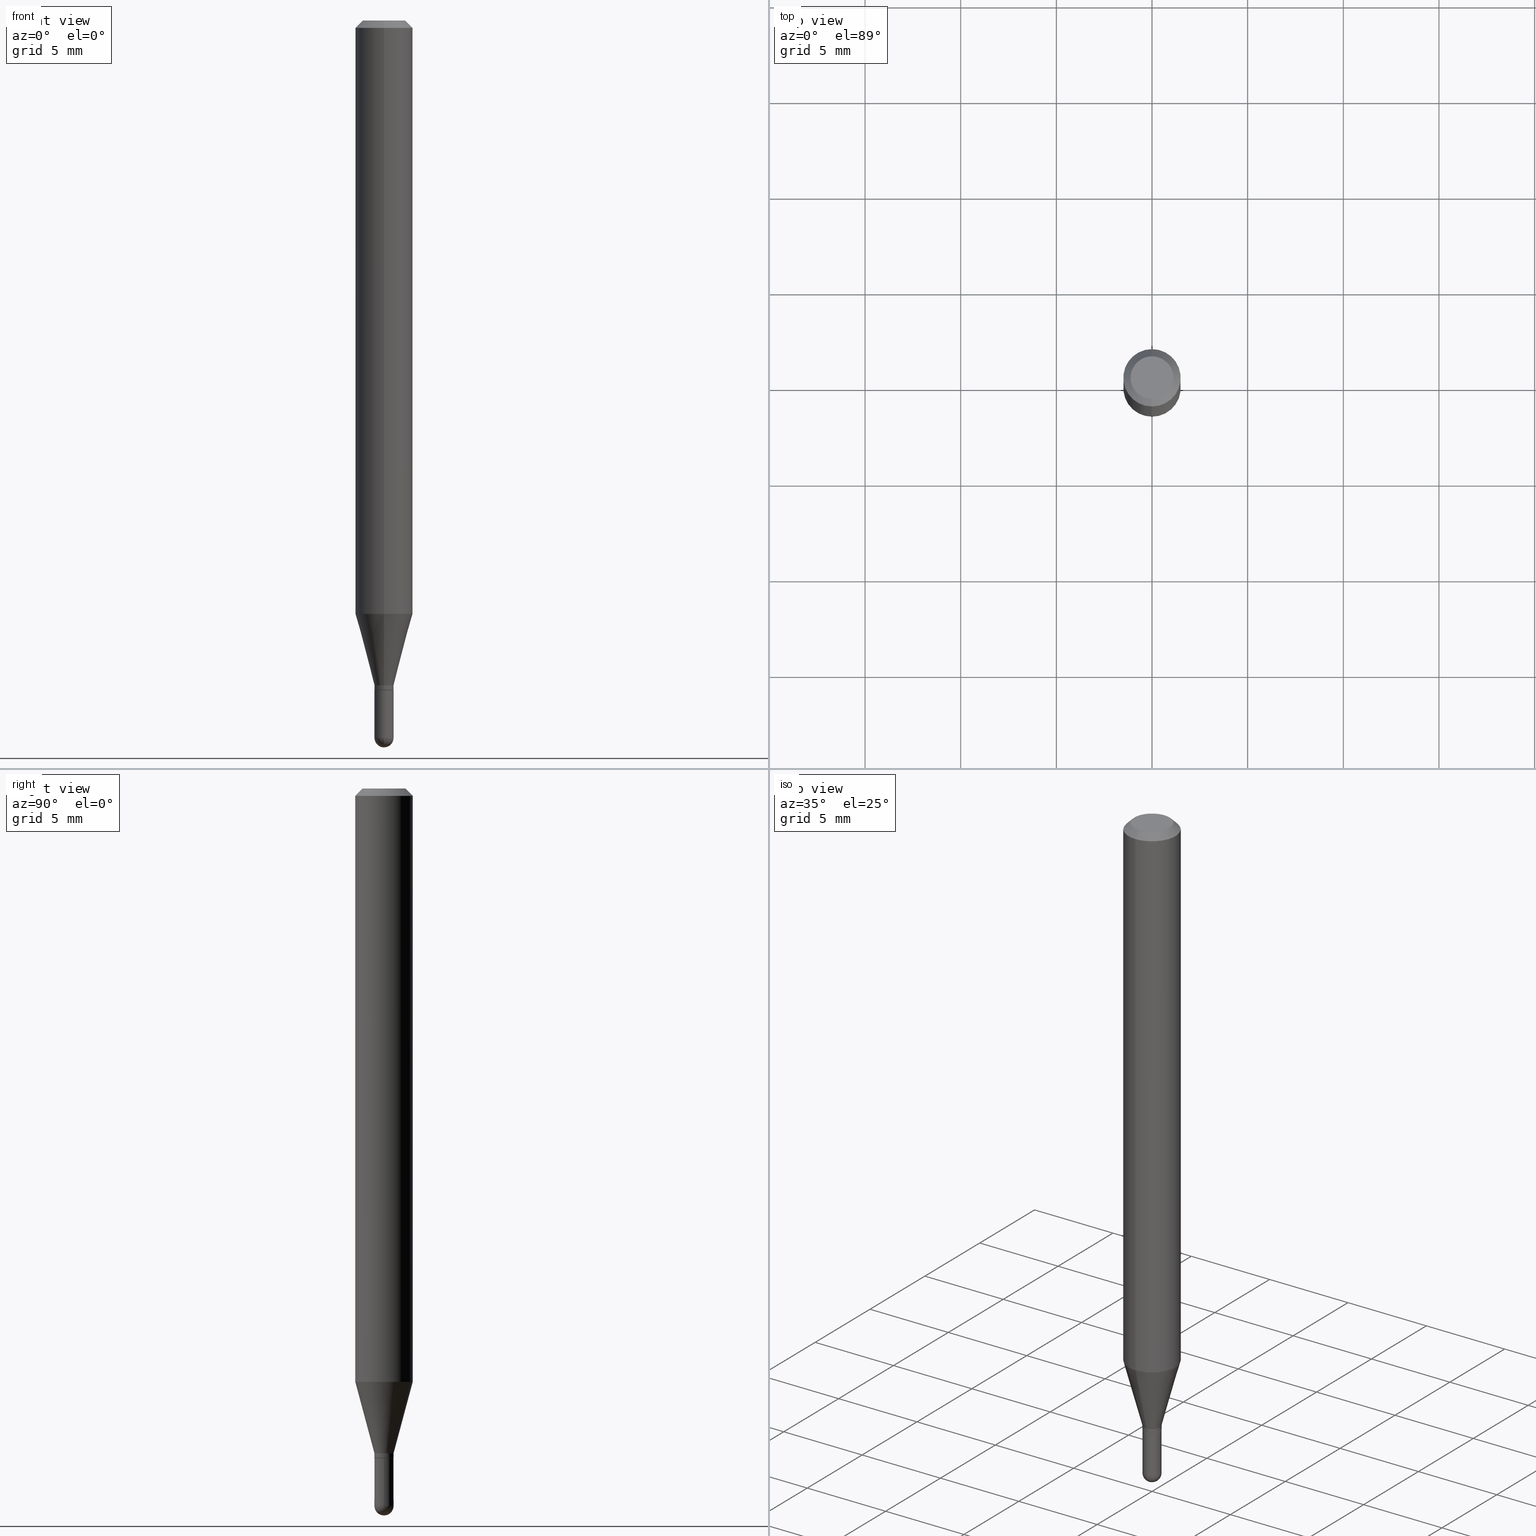
[diagram: canonical four-view strip — front | top / right | iso, engineering-drawing reading convention]
A machine part, canonical four-view strip (front | top / right | iso — engineering-drawing reading convention). The complete STEP part file that produces these views, byte-faithful:
ISO-10303-21;
HEADER;
FILE_DESCRIPTION (( 'STEP AP203' ),
    '1' );
FILE_NAME ('02829.STEP',
    '2024-03-07T21:39:05',
    ( '' ),
    ( '' ),
    'SwSTEP 2.0',
    'SolidWorks 2023',
    '' );
FILE_SCHEMA (( 'CONFIG_CONTROL_DESIGN' ));
ENDSEC;

DATA;
#1 = ORIENTED_EDGE ( 'NONE', *, *, #7, .F. ) ;
#2 = EDGE_CURVE ( 'NONE', #329, #493, #495, .T. ) ;
#3 = CARTESIAN_POINT ( 'NONE',  ( 3.522955324091332900E-29, -5.280177895028742273E-15, -1.476399999999999935 ) ) ;
#4 = DIRECTION ( 'NONE',  ( -6.982962677686265922E-15, -1.000000000000000000, 0.000000000000000000 ) ) ;
#5 = AXIS2_PLACEMENT_3D ( 'NONE', #257, #103, #413 ) ;
#6 = DIRECTION ( 'NONE',  ( -2.446456800980005682E-29, 3.490066474063722068E-15, 1.000000000000000000 ) ) ;
#7 = EDGE_CURVE ( 'NONE', #213, #21, #12, .T. ) ;
#8 = APPROVAL_DATE_TIME ( #328, #340 ) ;
#9 = DIRECTION ( 'NONE',  ( -2.446456800980005402E-29, 3.490066474063722068E-15, 1.000000000000000000 ) ) ;
#10 = EDGE_CURVE ( 'NONE', #94, #329, #134, .T. ) ;
#11 = DIRECTION ( 'NONE',  ( -2.445468806185136877E-29, 3.491481338843145188E-15, 1.000000000000000000 ) ) ;
#12 = CIRCLE ( 'NONE', #220, 0.01969999999999987039 ) ;
#13 =( GEOMETRIC_REPRESENTATION_CONTEXT ( 3 ) GLOBAL_UNCERTAINTY_ASSIGNED_CONTEXT ( ( #192 ) ) GLOBAL_UNIT_ASSIGNED_CONTEXT ( ( #311, #268, #116 ) ) REPRESENTATION_CONTEXT ( 'NONE', 'WORKASPACE' ) );
#14 = ORIENTED_EDGE ( 'NONE', *, *, #67, .T. ) ;
#15 = EDGE_LOOP ( 'NONE', ( #253, #14, #455, #395 ) ) ;
#16 = FACE_OUTER_BOUND ( 'NONE', #187, .T. ) ;
#17 = ORIENTED_EDGE ( 'NONE', *, *, #419, .T. ) ;
#18 = ORIENTED_EDGE ( 'NONE', *, *, #244, .F. ) ;
#19 = ORIENTED_EDGE ( 'NONE', *, *, #79, .F. ) ;
#20 = CARTESIAN_POINT ( 'NONE',  ( 3.371217471750447444E-29, -4.809311601259809045E-15, -1.377999999999999892 ) ) ;
#21 = VERTEX_POINT ( 'NONE', #397 ) ;
#22 = DIRECTION ( 'NONE',  ( -2.446456800980005402E-29, 3.490066474063722068E-15, 1.000000000000000000 ) ) ;
#23 = EDGE_LOOP ( 'NONE', ( #408, #451, #418, #102 ) ) ;
#24 = AXIS2_PLACEMENT_3D ( 'NONE', #437, #446, #49 ) ;
#25 = LOCAL_TIME ( 16, 39, 5.000000000000000000, #157 ) ;
#26 = DIRECTION ( 'NONE',  ( -2.446456800980005682E-29, 3.490066474063722068E-15, 1.000000000000000000 ) ) ;
#27 = ORIENTED_EDGE ( 'NONE', *, *, #501, .T. ) ;
#28 = CARTESIAN_POINT ( 'NONE',  ( 3.669685201470092461E-31, -5.235099711095702540E-17, -0.01500000000000034292 ) ) ;
#29 = DIRECTION ( 'NONE',  ( 6.982962677686265922E-15, 1.000000000000000000, 0.000000000000000000 ) ) ;
#30 = DIRECTION ( 'NONE',  ( -6.982962677686265922E-15, -1.000000000000000000, 0.000000000000000000 ) ) ;
#31 = AXIS2_PLACEMENT_3D ( 'NONE', #435, #309, #463 ) ;
#32 = LENGTH_MEASURE_WITH_UNIT ( LENGTH_MEASURE( 0.02539999999999999897 ), #391 );
#33 = ADVANCED_FACE ( 'NONE', ( #226 ), #126, .T. ) ;
#34 = DIRECTION ( 'NONE',  ( 1.000000000000000000, -6.982962677686275388E-15, 0.000000000000000000 ) ) ;
#35 = ORIENTED_EDGE ( 'NONE', *, *, #503, .T. ) ;
#36 = FACE_OUTER_BOUND ( 'NONE', #196, .T. ) ;
#37 = CYLINDRICAL_SURFACE ( 'NONE', #231, 0.01969999999999965529 ) ;
#38 = DIRECTION ( 'NONE',  ( -6.982962677686266711E-15, -1.000000000000000000, 3.490066474063722857E-15 ) ) ;
#39 = CIRCLE ( 'NONE', #140, 0.01969999999999987039 ) ;
#40 = ADVANCED_FACE ( 'NONE', ( #349 ), #180, .T. ) ;
#41 = AXIS2_PLACEMENT_3D ( 'NONE', #121, #193, #351 ) ;
#42 = DIRECTION ( 'NONE',  ( 1.000000000000000000, -6.982962677686275388E-15, 0.000000000000000000 ) ) ;
#43 = PERSON_AND_ORGANIZATION_ROLE ( 'design_supplier' ) ;
#44 = DIRECTION ( 'NONE',  ( -2.445468806185136597E-29, 3.491481338843145583E-15, 1.000000000000000000 ) ) ;
#45 = PERSON_AND_ORGANIZATION ( #412, #298 ) ;
#46 = CARTESIAN_POINT ( 'NONE',  ( 0.000000000000000000, 0.000000000000000000, 0.000000000000000000 ) ) ;
#47 = CIRCLE ( 'NONE', #341, 0.01969999999999987039 ) ;
#48 = CARTESIAN_POINT ( 'NONE',  ( -1.399769189447036867E-16, -0.01970000000000517171, -1.476399999999999491 ) ) ;
#49 = DIRECTION ( 'NONE',  ( 1.000000000000000000, -6.982962677686275388E-15, 0.000000000000000000 ) ) ;
#50 = DIRECTION ( 'NONE',  ( -6.982962677686265922E-15, -1.000000000000000000, 3.490066474063722068E-15 ) ) ;
#51 = EDGE_LOOP ( 'NONE', ( #378, #345, #227, #222 ) ) ;
#52 = ADVANCED_FACE ( 'NONE', ( #506 ), #37, .T. ) ;
#53 = EDGE_LOOP ( 'NONE', ( #339, #380 ) ) ;
#54 = AXIS2_PLACEMENT_3D ( 'NONE', #273, #269, #113 ) ;
#55 = CIRCLE ( 'NONE', #82, 0.01919999999999986648 ) ;
#56 = CARTESIAN_POINT ( 'NONE',  ( 3.669685201470092461E-31, -5.235099711095702540E-17, -0.01500000000000034292 ) ) ;
#57 = ORIENTED_EDGE ( 'NONE', *, *, #179, .T. ) ;
#58 = LINE ( 'NONE', #136, #287 ) ;
#59 = EDGE_LOOP ( 'NONE', ( #18, #104, #409, #299 ) ) ;
#60 = CYLINDRICAL_SURFACE ( 'NONE', #182, 0.05904999999999999832 ) ;
#61 = ORIENTED_EDGE ( 'NONE', *, *, #447, .T. ) ;
#62 = VECTOR ( 'NONE', #276, 39.37007874015748143 ) ;
#63 = DIRECTION ( 'NONE',  ( 6.982962677686265922E-15, 1.000000000000000000, 0.000000000000000000 ) ) ;
#64 = DIRECTION ( 'NONE',  ( -4.851104656540964275E-15, -0.7071067811865500152, -0.7071067811865450192 ) ) ;
#65 = CYLINDRICAL_SURFACE ( 'NONE', #422, 0.01969999999999965529 ) ;
#66 = DIRECTION ( 'NONE',  ( -6.982962677686265922E-15, -1.000000000000000000, 3.490066474063722068E-15 ) ) ;
#67 = EDGE_CURVE ( 'NONE', #433, #138, #108, .T. ) ;
#68 = DIRECTION ( 'NONE',  ( -6.982962677686266711E-15, -1.000000000000000000, 3.490066474063722857E-15 ) ) ;
#69 = EDGE_CURVE ( 'NONE', #433, #250, #230, .T. ) ;
#70 = CARTESIAN_POINT ( 'NONE',  ( 4.195754854663691246E-16, 0.05904999999999994975, -0.01500000000000055109 ) ) ;
#71 = VECTOR ( 'NONE', #155, 39.37007874015748143 ) ;
#72 = PRODUCT_DEFINITION_FORMATION_WITH_SPECIFIED_SOURCE ( 'ANY', '', #356, .NOT_KNOWN. ) ;
#73 = CARTESIAN_POINT ( 'NONE',  ( -0.01969999999999987039, -4.843065247852196904E-15, -1.476399999999999491 ) ) ;
#74 = CYLINDRICAL_SURFACE ( 'NONE', #98, 0.05904999999999999832 ) ;
#75 = COORDINATED_UNIVERSAL_TIME_OFFSET ( 5, 0, .BEHIND. ) ;
#76 = CARTESIAN_POINT ( 'NONE',  ( 3.346997549420744839E-29, -4.774759943166577128E-15, -1.368099999999999872 ) ) ;
#77 = COORDINATED_UNIVERSAL_TIME_OFFSET ( 5, 0, .BEHIND. ) ;
#78 = LINE ( 'NONE', #320, #326 ) ;
#79 = EDGE_CURVE ( 'NONE', #347, #407, #352, .T. ) ;
#80 = VECTOR ( 'NONE', #129, 39.37007874015748854 ) ;
#81 = MECHANICAL_CONTEXT ( 'NONE', #414, 'mechanical' ) ;
#82 = AXIS2_PLACEMENT_3D ( 'NONE', #430, #314, #469 ) ;
#83 = CYLINDRICAL_SURFACE ( 'NONE', #316, 0.01969999999999987039 ) ;
#84 = APPROVAL ( #245, 'UNSPECIFIED' ) ;
#85 = ADVANCED_FACE ( 'NONE', ( #149 ), #198, .F. ) ;
#86 = DIRECTION ( 'NONE',  ( -6.982962677686265133E-15, -1.000000000000000000, 0.000000000000000000 ) ) ;
#87 = PERSON_AND_ORGANIZATION_ROLE ( 'classification_officer' ) ;
#88 = LINE ( 'NONE', #290, #265 ) ;
#89 = CLOSED_SHELL ( 'NONE', ( #496, #133, #40, #342, #33, #272, #158, #323, #363, #117, #337, #52 ) ) ;
#90 = DIRECTION ( 'NONE',  ( -2.446456800980005402E-29, 3.490066474063722068E-15, 1.000000000000000000 ) ) ;
#91 = AXIS2_PLACEMENT_3D ( 'NONE', #439, #243, #131 ) ;
#92 = ORIENTED_EDGE ( 'NONE', *, *, #7, .T. ) ;
#93 = EDGE_CURVE ( 'NONE', #490, #407, #404, .T. ) ;
#94 = VERTEX_POINT ( 'NONE', #307 ) ;
#95 = DIRECTION ( 'NONE',  ( 4.937700262164548042E-15, 0.7071067811865451302, -0.7071067811865499042 ) ) ;
#96 = ORIENTED_EDGE ( 'NONE', *, *, #79, .T. ) ;
#97 = ORIENTED_EDGE ( 'NONE', *, *, #488, .F. ) ;
#98 = AXIS2_PLACEMENT_3D ( 'NONE', #315, #460, #167 ) ;
#99 = LOCAL_TIME ( 16, 39, 5.000000000000000000, #478 ) ;
#100 = ORIENTED_EDGE ( 'NONE', *, *, #387, .T. ) ;
#101 = FACE_OUTER_BOUND ( 'NONE', #51, .T. ) ;
#102 = ORIENTED_EDGE ( 'NONE', *, *, #275, .F. ) ;
#103 = DIRECTION ( 'NONE',  ( -2.445468806185136597E-29, 3.491481338843145583E-15, 1.000000000000000000 ) ) ;
#104 = ORIENTED_EDGE ( 'NONE', *, *, #2, .T. ) ;
#105 = EDGE_CURVE ( 'NONE', #458, #213, #370, .T. ) ;
#106 = CARTESIAN_POINT ( 'NONE',  ( -4.123439461173736383E-16, -0.05905000000000005383, -0.01500000000000013649 ) ) ;
#107 = CARTESIAN_POINT ( 'NONE',  ( 8.396513641257656738E-45, -1.197829887968316227E-30, -3.432111957952484022E-16 ) ) ;
#108 = CIRCLE ( 'NONE', #296, 0.01969999999999951998 ) ;
#109 = VECTOR ( 'NONE', #346, 39.37007874015748143 ) ;
#110 = MANIFOLD_SOLID_BREP ( 'Body-Move/Copy2[2]', #89 ) ;
#111 = DIRECTION ( 'NONE',  ( 6.982962677686266711E-15, 1.000000000000000000, 0.000000000000000000 ) ) ;
#112 = EDGE_CURVE ( 'NONE', #184, #336, #468, .T. ) ;
#113 = DIRECTION ( 'NONE',  ( -6.982962677686265922E-15, -1.000000000000000000, 4.626330217890369336E-15 ) ) ;
#114 = FACE_OUTER_BOUND ( 'NONE', #171, .T. ) ;
#115 = CARTESIAN_POINT ( 'NONE',  ( 1.399769189447697785E-16, 0.01969999999999474255, -1.368099999999999872 ) ) ;
#116 =( NAMED_UNIT ( * ) SI_UNIT ( $, .STERADIAN. ) SOLID_ANGLE_UNIT ( ) );
#117 = ADVANCED_FACE ( 'NONE', ( #432 ), #189, .F. ) ;
#118 = FACE_OUTER_BOUND ( 'NONE', #353, .T. ) ;
#119 = CLOSED_SHELL ( 'NONE', ( #254, #424, #85, #453, #318 ) ) ;
#120 = CC_DESIGN_APPROVAL ( #84, ( #239 ) ) ;
#121 = CARTESIAN_POINT ( 'NONE',  ( 2.987720201931407293E-29, -4.262222045558578692E-15, -1.221243800722163320 ) ) ;
#122 = DIRECTION ( 'NONE',  ( -6.982962677686265133E-15, -1.000000000000000000, 0.000000000000000000 ) ) ;
#123 = PERSON_AND_ORGANIZATION_ROLE ( 'creator' ) ;
#124 = APPROVAL_DATE_TIME ( #127, #84 ) ;
#125 = CARTESIAN_POINT ( 'NONE',  ( -4.123439461173442039E-16, -0.05905000000000427962, -1.221243800722163320 ) ) ;
#126 = CONICAL_SURFACE ( 'NONE', #332, 0.01969999999999951998, 0.2617993877991505736 ) ;
#127 = DATE_AND_TIME ( #367, #267 ) ;
#128 = APPROVAL_PERSON_ORGANIZATION ( #206, #84, #284 ) ;
#129 = DIRECTION ( 'NONE',  ( -1.807323732225332111E-15, -0.2588190451025184635, 0.9659258262890689783 ) ) ;
#130 = DIRECTION ( 'NONE',  ( -1.000000000000000000, 7.105427357601001070E-15, -4.926315508542082329E-29 ) ) ;
#131 = DIRECTION ( 'NONE',  ( 1.000000000000000000, 0.000000000000000000, 0.000000000000000000 ) ) ;
#132 = ORIENTED_EDGE ( 'NONE', *, *, #205, .T. ) ;
#133 = ADVANCED_FACE ( 'NONE', ( #358 ), #461, .T. ) ;
#134 = CIRCLE ( 'NONE', #164, 0.04404999999999999888 ) ;
#135 = CARTESIAN_POINT ( 'NONE',  ( 3.571973398368021242E-29, -5.347753800306791438E-15, -1.496099999999999985 ) ) ;
#136 = CARTESIAN_POINT ( 'NONE',  ( 1.364242052659719861E-16, 0.01919999999999505783, -1.377999999999999892 ) ) ;
#137 = EDGE_LOOP ( 'NONE', ( #261, #17, #96, #209 ) ) ;
#138 = VERTEX_POINT ( 'NONE', #312 ) ;
#139 = CC_DESIGN_PERSON_AND_ORGANIZATION_ASSIGNMENT ( #436, #123, ( #258 ) ) ;
#140 = AXIS2_PLACEMENT_3D ( 'NONE', #406, #366, #242 ) ;
#141 = ORIENTED_EDGE ( 'NONE', *, *, #488, .T. ) ;
#142 = AXIS2_PLACEMENT_3D ( 'NONE', #237, #90, #248 ) ;
#143 = CIRCLE ( 'NONE', #360, 0.01970000000000002999 ) ;
#144 = EDGE_CURVE ( 'NONE', #260, #250, #369, .T. ) ;
#145 = ORIENTED_EDGE ( 'NONE', *, *, #221, .T. ) ;
#146 = CARTESIAN_POINT ( 'NONE',  ( 1.375643647504522233E-16, 0.01969999999999505827, -1.377999999999999892 ) ) ;
#147 = VERTEX_POINT ( 'NONE', #70 ) ;
#148 = LINE ( 'NONE', #466, #431 ) ;
#149 = FACE_OUTER_BOUND ( 'NONE', #53, .T. ) ;
#150 = AXIS2_PLACEMENT_3D ( 'NONE', #56, #375, #457 ) ;
#151 = AXIS2_PLACEMENT_3D ( 'NONE', #297, #497, #334 ) ;
#152 = CARTESIAN_POINT ( 'NONE',  ( 3.371217471750447444E-29, -4.809311601259809045E-15, -1.377999999999999892 ) ) ;
#153 = DIRECTION ( 'NONE',  ( -2.446456800980005402E-29, 3.490066474063722068E-15, 1.000000000000000000 ) ) ;
#154 = CARTESIAN_POINT ( 'NONE',  ( 3.371217471750447444E-29, -4.809311601259809045E-15, -1.377999999999999892 ) ) ;
#155 = DIRECTION ( 'NONE',  ( -4.937700262164684515E-15, -0.7071067811865646702, 0.7071067811865303643 ) ) ;
#156 = CONICAL_SURFACE ( 'NONE', #306, 0.01969999999999951998, 0.2617993877991505736 ) ;
#157 = COORDINATED_UNIVERSAL_TIME_OFFSET ( 5, 0, .BEHIND. ) ;
#158 = ADVANCED_FACE ( 'NONE', ( #118 ), #74, .T. ) ;
#159 = CARTESIAN_POINT ( 'NONE',  ( 3.522955324091332900E-29, -5.280177895028742273E-15, -1.476399999999999935 ) ) ;
#160 = PERSON_AND_ORGANIZATION ( #412, #298 ) ;
#161 = FACE_OUTER_BOUND ( 'NONE', #421, .T. ) ;
#162 = COORDINATED_UNIVERSAL_TIME_OFFSET ( 5, 0, .BEHIND. ) ;
#163 = DIRECTION ( 'NONE',  ( -6.982962677686265922E-15, -1.000000000000000000, 0.000000000000000000 ) ) ;
#164 = AXIS2_PLACEMENT_3D ( 'NONE', #107, #234, #389 ) ;
#165 = CALENDAR_DATE ( 2024, 7, 3 ) ;
#166 = CARTESIAN_POINT ( 'NONE',  ( 3.369994243349957272E-29, -4.807566568022776907E-15, -1.377499999999999947 ) ) ;
#167 = DIRECTION ( 'NONE',  ( -6.982962677686265922E-15, -1.000000000000000000, 3.490066474063722068E-15 ) ) ;
#168 = EDGE_CURVE ( 'NONE', #407, #490, #190, .T. ) ;
#169 = CARTESIAN_POINT ( 'NONE',  ( 3.075995059520799729E-16, 0.04404999999999999888, -3.253430260801311543E-16 ) ) ;
#170 = ORIENTED_EDGE ( 'NONE', *, *, #219, .T. ) ;
#171 = EDGE_LOOP ( 'NONE', ( #211, #170, #251, #411 ) ) ;
#172 = VECTOR ( 'NONE', #95, 39.37007874015748143 ) ;
#173 = LOCAL_TIME ( 16, 39, 5.000000000000000000, #162 ) ;
#174 = ORIENTED_EDGE ( 'NONE', *, *, #144, .T. ) ;
#175 = CARTESIAN_POINT ( 'NONE',  ( 1.382005621053719423E-16, 0.01919999999999505783, -1.377999999999999892 ) ) ;
#176 = ORIENTED_EDGE ( 'NONE', *, *, #185, .T. ) ;
#177 = FACE_OUTER_BOUND ( 'NONE', #216, .T. ) ;
#178 = EDGE_LOOP ( 'NONE', ( #504, #181, #92, #57, #294 ) ) ;
#179 = EDGE_CURVE ( 'NONE', #21, #336, #88, .T. ) ;
#180 = CONICAL_SURFACE ( 'NONE', #441, 0.05904999999999999832, 0.7853981633974483900 ) ;
#181 = ORIENTED_EDGE ( 'NONE', *, *, #105, .T. ) ;
#182 = AXIS2_PLACEMENT_3D ( 'NONE', #338, #410, #50 ) ;
#183 = EDGE_CURVE ( 'NONE', #147, #493, #480, .T. ) ;
#184 = VERTEX_POINT ( 'NONE', #246 ) ;
#185 = EDGE_CURVE ( 'NONE', #21, #373, #39, .T. ) ;
#186 = CARTESIAN_POINT ( 'NONE',  ( 0.000000000000000000, 0.000000000000000000, 0.000000000000000000 ) ) ;
#187 = EDGE_LOOP ( 'NONE', ( #374, #376 ) ) ;
#188 = DIRECTION ( 'NONE',  ( 1.000000000000000000, -6.982962677686265922E-15, 4.883557194083112340E-29 ) ) ;
#189 = PLANE ( 'NONE',  #507 ) ;
#190 = CIRCLE ( 'NONE', #201, 0.01969999999999979406 ) ;
#191 = VECTOR ( 'NONE', #396, 39.37007874015748143 ) ;
#192 = UNCERTAINTY_MEASURE_WITH_UNIT (LENGTH_MEASURE( 1.000000000000000082E-05 ), #311, 'distance_accuracy_value', 'NONE');
#193 = DIRECTION ( 'NONE',  ( -2.446456800980005402E-29, 3.490066474063722068E-15, 1.000000000000000000 ) ) ;
#194 = CC_DESIGN_DATE_AND_TIME_ASSIGNMENT ( #365, #330, ( #258 ) ) ;
#195 = CARTESIAN_POINT ( 'NONE',  ( 3.369994243349957272E-29, -4.807566568022776907E-15, -1.377499999999999947 ) ) ;
#196 = EDGE_LOOP ( 'NONE', ( #259, #27, #263, #1 ) ) ;
#197 = CARTESIAN_POINT ( 'NONE',  ( 1.399769189447714795E-16, 0.01969999999999492296, -1.377499999999999947 ) ) ;
#198 = PLANE ( 'NONE',  #499 ) ;
#199 = PERSON_AND_ORGANIZATION ( #412, #298 ) ;
#200 = DIRECTION ( 'NONE',  ( -2.445468806185136597E-29, 3.491481338843145583E-15, 1.000000000000000000 ) ) ;
#201 = AXIS2_PLACEMENT_3D ( 'NONE', #166, #285, #86 ) ;
#202 = SHAPE_DEFINITION_REPRESENTATION ( #384, #390 ) ;
#203 = DIRECTION ( 'NONE',  ( -7.105427357601000281E-15, -1.000000000000000000, 0.000000000000000000 ) ) ;
#204 = DATE_AND_TIME ( #482, #25 ) ;
#205 = EDGE_CURVE ( 'NONE', #373, #458, #214, .T. ) ;
#206 = PERSON_AND_ORGANIZATION ( #412, #298 ) ;
#207 = CARTESIAN_POINT ( 'NONE',  ( 3.346997549420744839E-29, -4.774759943166577128E-15, -1.368099999999999872 ) ) ;
#208 = CIRCLE ( 'NONE', #308, 0.05904999999999999832 ) ;
#209 = ORIENTED_EDGE ( 'NONE', *, *, #93, .F. ) ;
#210 = CC_DESIGN_PERSON_AND_ORGANIZATION_ASSIGNMENT ( #486, #87, ( #239 ) ) ;
#211 = ORIENTED_EDGE ( 'NONE', *, *, #168, .T. ) ;
#212 = FACE_OUTER_BOUND ( 'NONE', #178, .T. ) ;
#213 = VERTEX_POINT ( 'NONE', #48 ) ;
#214 = CIRCLE ( 'NONE', #24, 0.01969999999999987039 ) ;
#215 = CIRCLE ( 'NONE', #41, 0.05904999999999999832 ) ;
#216 = EDGE_LOOP ( 'NONE', ( #174, #459, #279, #97 ) ) ;
#217 = ORIENTED_EDGE ( 'NONE', *, *, #503, .F. ) ;
#218 = EDGE_LOOP ( 'NONE', ( #473, #145, #302, #313 ) ) ;
#219 = EDGE_CURVE ( 'NONE', #490, #433, #402, .T. ) ;
#220 = AXIS2_PLACEMENT_3D ( 'NONE', #398, #229, #34 ) ;
#221 = EDGE_CURVE ( 'NONE', #383, #213, #392, .T. ) ;
#222 = ORIENTED_EDGE ( 'NONE', *, *, #183, .T. ) ;
#223 = LOCAL_TIME ( 16, 39, 5.000000000000000000, #77 ) ;
#224 = EDGE_CURVE ( 'NONE', #250, #147, #78, .T. ) ;
#225 = APPLICATION_PROTOCOL_DEFINITION ( 'international standard', 'config_control_design', 1994, #414 ) ;
#226 = FACE_OUTER_BOUND ( 'NONE', #23, .T. ) ;
#227 = ORIENTED_EDGE ( 'NONE', *, *, #283, .T. ) ;
#228 = DIRECTION ( 'NONE',  ( -2.446456800980005402E-29, 3.490066474063722068E-15, 1.000000000000000000 ) ) ;
#229 = DIRECTION ( 'NONE',  ( -2.445468806185136597E-29, 3.491481338843145583E-15, 1.000000000000000000 ) ) ;
#230 = LINE ( 'NONE', #115, #62 ) ;
#231 = AXIS2_PLACEMENT_3D ( 'NONE', #186, #472, #38 ) ;
#232 = CONICAL_SURFACE ( 'NONE', #405, 0.01919999999999986648, 0.7853981633974760346 ) ;
#233 = CARTESIAN_POINT ( 'NONE',  ( 0.000000000000000000, 0.000000000000000000, 0.000000000000000000 ) ) ;
#234 = DIRECTION ( 'NONE',  ( -2.446456800980005402E-29, 3.490066474063722068E-15, 1.000000000000000000 ) ) ;
#235 = CARTESIAN_POINT ( 'NONE',  ( 3.346997549420744839E-29, -4.774759943166577128E-15, -1.368099999999999872 ) ) ;
#236 = CALENDAR_DATE ( 2024, 7, 3 ) ;
#237 = CARTESIAN_POINT ( 'NONE',  ( 3.669685201470092461E-31, -5.235099711095702540E-17, -0.01500000000000034292 ) ) ;
#238 = CONICAL_SURFACE ( 'NONE', #150, 0.05904999999999999832, 0.7853981633974483900 ) ;
#239 = SECURITY_CLASSIFICATION ( '', '', #403 ) ;
#240 = PERSON_AND_ORGANIZATION ( #412, #298 ) ;
#241 = EDGE_CURVE ( 'NONE', #336, #184, #47, .T. ) ;
#242 = DIRECTION ( 'NONE',  ( 1.000000000000000000, -6.982962677686275388E-15, 0.000000000000000000 ) ) ;
#243 = DIRECTION ( 'NONE',  ( 0.000000000000000000, 0.000000000000000000, 1.000000000000000000 ) ) ;
#244 = EDGE_CURVE ( 'NONE', #329, #94, #489, .T. ) ;
#245 = APPROVAL_STATUS ( 'not_yet_approved' ) ;
#246 = CARTESIAN_POINT ( 'NONE',  ( -0.01969999999999987039, -4.843065247852196904E-15, -1.377999999999999892 ) ) ;
#247 = AXIS2_PLACEMENT_3D ( 'NONE', #195, #512, #122 ) ;
#248 = DIRECTION ( 'NONE',  ( -6.982962677686265922E-15, -1.000000000000000000, 3.505890868245046092E-15 ) ) ;
#249 = FACE_OUTER_BOUND ( 'NONE', #137, .T. ) ;
#250 = VERTEX_POINT ( 'NONE', #364 ) ;
#251 = ORIENTED_EDGE ( 'NONE', *, *, #361, .F. ) ;
#252 = CARTESIAN_POINT ( 'NONE',  ( 3.669685201470092461E-31, -5.235099711095702540E-17, -0.01500000000000034292 ) ) ;
#253 = ORIENTED_EDGE ( 'NONE', *, *, #69, .F. ) ;
#254 = ADVANCED_FACE ( 'NONE', ( #161 ), #83, .T. ) ;
#255 = APPLICATION_CONTEXT ( 'configuration controlled 3d designs of mechanical parts and assemblies' ) ;
#256 = VECTOR ( 'NONE', #64, 39.37007874015748143 ) ;
#257 = CARTESIAN_POINT ( 'NONE',  ( 0.000000000000000000, 0.000000000000000000, 0.000000000000000000 ) ) ;
#258 = PRODUCT_DEFINITION ( 'UNKNOWN', '', #72, #481 ) ;
#259 = ORIENTED_EDGE ( 'NONE', *, *, #221, .F. ) ;
#260 = VERTEX_POINT ( 'NONE', #125 ) ;
#261 = ORIENTED_EDGE ( 'NONE', *, *, #387, .F. ) ;
#262 = CARTESIAN_POINT ( 'NONE',  ( 0.01969999999999987039, -4.948825649676273165E-15, -1.377999999999999892 ) ) ;
#263 = ORIENTED_EDGE ( 'NONE', *, *, #185, .F. ) ;
#264 = DIRECTION ( 'NONE',  ( -6.982962677686265922E-15, -1.000000000000000000, 3.505890868245046092E-15 ) ) ;
#265 = VECTOR ( 'NONE', #11, 39.37007874015748143 ) ;
#266 = DIRECTION ( 'NONE',  ( 6.982962677686265922E-15, 1.000000000000000000, -3.505890868245046092E-15 ) ) ;
#267 = LOCAL_TIME ( 16, 39, 5.000000000000000000, #75 ) ;
#268 =( NAMED_UNIT ( * ) PLANE_ANGLE_UNIT ( ) SI_UNIT ( $, .RADIAN. ) );
#269 = DIRECTION ( 'NONE',  ( -2.446456800980005402E-29, 3.490066474063722068E-15, 1.000000000000000000 ) ) ;
#270 = PRODUCT_RELATED_PRODUCT_CATEGORY ( 'detail', '', ( #356 ) ) ;
#271 = DIRECTION ( 'NONE',  ( -6.982962677686265922E-15, -1.000000000000000000, 0.000000000000000000 ) ) ;
#272 = ADVANCED_FACE ( 'NONE', ( #440 ), #156, .T. ) ;
#273 = CARTESIAN_POINT ( 'NONE',  ( 2.987720201931407293E-29, -4.262222045558578692E-15, -1.221243800722163320 ) ) ;
#274 = EDGE_LOOP ( 'NONE', ( #217, #379 ) ) ;
#275 = EDGE_CURVE ( 'NONE', #138, #260, #325, .T. ) ;
#276 = DIRECTION ( 'NONE',  ( 1.839019923739602287E-15, 0.2588190451025252359, 0.9659258262890670910 ) ) ;
#277 = VECTOR ( 'NONE', #6, 39.37007874015748143 ) ;
#278 = DIRECTION ( 'NONE',  ( 1.000000000000000000, -6.982962677686275388E-15, 0.000000000000000000 ) ) ;
#279 = ORIENTED_EDGE ( 'NONE', *, *, #417, .F. ) ;
#280 = APPROVAL_ROLE ( '' ) ;
#281 = DIRECTION ( 'NONE',  ( -6.982962677686265133E-15, -1.000000000000000000, 3.490066474063722068E-15 ) ) ;
#282 = MANIFOLD_SOLID_BREP ( 'Body-Move/Copy2[1]', #119 ) ;
#283 = EDGE_CURVE ( 'NONE', #94, #147, #368, .T. ) ;
#284 = APPROVAL_ROLE ( '' ) ;
#285 = DIRECTION ( 'NONE',  ( -2.446456800980005402E-29, 3.490066474063722068E-15, 1.000000000000000000 ) ) ;
#286 = AXIS2_PLACEMENT_3D ( 'NONE', #428, #465, #278 ) ;
#287 = VECTOR ( 'NONE', #293, 39.37007874015748143 ) ;
#288 = APPLICATION_PROTOCOL_DEFINITION ( 'international standard', 'config_control_design', 1994, #255 ) ;
#289 = CARTESIAN_POINT ( 'NONE',  ( 8.396513641257656738E-45, -1.197829887968316227E-30, -3.432111957952484022E-16 ) ) ;
#290 = CARTESIAN_POINT ( 'NONE',  ( 0.01969999999999987039, -1.375643647504185241E-16, 9.606068248317930159E-31 ) ) ;
#291 = APPROVAL_PERSON_ORGANIZATION ( #199, #456, #443 ) ;
#292 = ORIENTED_EDGE ( 'NONE', *, *, #471, .T. ) ;
#293 = DIRECTION ( 'NONE',  ( 5.024295867788201229E-15, 0.7071067811865695552, 0.7071067811865254793 ) ) ;
#294 = ORIENTED_EDGE ( 'NONE', *, *, #112, .F. ) ;
#295 = ORIENTED_EDGE ( 'NONE', *, *, #219, .F. ) ;
#296 = AXIS2_PLACEMENT_3D ( 'NONE', #76, #153, #4 ) ;
#297 = CARTESIAN_POINT ( 'NONE',  ( 3.346997549420744839E-29, -4.774759943166577128E-15, -1.368099999999999872 ) ) ;
#298 = ORGANIZATION ( 'UNSPECIFIED', 'UNSPECIFIED', '' ) ;
#299 = ORIENTED_EDGE ( 'NONE', *, *, #283, .F. ) ;
#300 = CARTESIAN_POINT ( 'NONE',  ( 4.123439461173743285E-16, 0.05904999999999994975, -0.01500000000000055109 ) ) ;
#301 = VERTEX_POINT ( 'NONE', #175 ) ;
#302 = ORIENTED_EDGE ( 'NONE', *, *, #105, .F. ) ;
#303 = SPHERICAL_SURFACE ( 'NONE', #442, 0.01970000000000002999 ) ;
#304 = DIRECTION ( 'NONE',  ( 1.000000000000000000, -6.982962677686275388E-15, 0.000000000000000000 ) ) ;
#305 = LINE ( 'NONE', #427, #109 ) ;
#306 = AXIS2_PLACEMENT_3D ( 'NONE', #207, #9, #163 ) ;
#307 = CARTESIAN_POINT ( 'NONE',  ( 3.599717260347271507E-16, 0.04404999999999999888, -4.969486239777553554E-16 ) ) ;
#308 = AXIS2_PLACEMENT_3D ( 'NONE', #252, #228, #264 ) ;
#309 = DIRECTION ( 'NONE',  ( -2.446456800980005402E-29, 3.490066474063722068E-15, 1.000000000000000000 ) ) ;
#310 = DIMENSIONAL_EXPONENTS ( 1.000000000000000000, 0.000000000000000000, 0.000000000000000000, 0.000000000000000000, 0.000000000000000000, 0.000000000000000000, 0.000000000000000000 ) ;
#311 =( CONVERSION_BASED_UNIT ( 'INCH', #32 ) LENGTH_UNIT ( ) NAMED_UNIT ( #310 ) );
#312 = CARTESIAN_POINT ( 'NONE',  ( -1.375643647503826063E-16, -0.01970000000000429741, -1.368099999999999872 ) ) ;
#313 = ORIENTED_EDGE ( 'NONE', *, *, #205, .F. ) ;
#314 = DIRECTION ( 'NONE',  ( -2.446456800980005402E-29, 3.490066474063722068E-15, 1.000000000000000000 ) ) ;
#315 = CARTESIAN_POINT ( 'NONE',  ( 0.000000000000000000, 0.000000000000000000, 0.000000000000000000 ) ) ;
#316 = AXIS2_PLACEMENT_3D ( 'NONE', #46, #322, #477 ) ;
#317 = CC_DESIGN_SECURITY_CLASSIFICATION ( #239, ( #72 ) ) ;
#318 = ADVANCED_FACE ( 'NONE', ( #212 ), #344, .T. ) ;
#319 = APPROVAL_DATE_TIME ( #204, #456 ) ;
#320 = CARTESIAN_POINT ( 'NONE',  ( 4.195754854663390985E-16, 0.05904999999999999832, -2.060884252934627892E-16 ) ) ;
#321 = DATE_TIME_ROLE ( 'classification_date' ) ;
#322 = DIRECTION ( 'NONE',  ( -2.445468806185136597E-29, 3.491481338843145583E-15, 1.000000000000000000 ) ) ;
#323 = ADVANCED_FACE ( 'NONE', ( #101 ), #238, .T. ) ;
#324 = DATE_AND_TIME ( #236, #223 ) ;
#325 = LINE ( 'NONE', #479, #80 ) ;
#326 = VECTOR ( 'NONE', #372, 39.37007874015748143 ) ;
#327 = AXIS2_PLACEMENT_3D ( 'NONE', #169, #491, #416 ) ;
#328 = DATE_AND_TIME ( #401, #173 ) ;
#329 = VERTEX_POINT ( 'NONE', #448 ) ;
#330 = DATE_TIME_ROLE ( 'creation_date' ) ;
#331 = CARTESIAN_POINT ( 'NONE',  ( -1.340728834115416699E-16, -0.01920000000000467513, -1.377999999999999892 ) ) ;
#332 = AXIS2_PLACEMENT_3D ( 'NONE', #235, #386, #30 ) ;
#333 = EDGE_LOOP ( 'NONE', ( #295, #502, #292, #335 ) ) ;
#334 = DIRECTION ( 'NONE',  ( -6.982962677686265922E-15, -1.000000000000000000, 0.000000000000000000 ) ) ;
#335 = ORIENTED_EDGE ( 'NONE', *, *, #67, .F. ) ;
#336 = VERTEX_POINT ( 'NONE', #262 ) ;
#337 = ADVANCED_FACE ( 'NONE', ( #249 ), #232, .T. ) ;
#338 = CARTESIAN_POINT ( 'NONE',  ( 0.000000000000000000, 0.000000000000000000, 0.000000000000000000 ) ) ;
#339 = ORIENTED_EDGE ( 'NONE', *, *, #241, .T. ) ;
#340 = APPROVAL ( #362, 'UNSPECIFIED' ) ;
#341 = AXIS2_PLACEMENT_3D ( 'NONE', #399, #44, #42 ) ;
#342 = ADVANCED_FACE ( 'NONE', ( #177 ), #60, .T. ) ;
#343 = CC_DESIGN_APPROVAL ( #340, ( #72 ) ) ;
#344 = CYLINDRICAL_SURFACE ( 'NONE', #5, 0.01969999999999987039 ) ;
#345 = ORIENTED_EDGE ( 'NONE', *, *, #10, .F. ) ;
#346 = DIRECTION ( 'NONE',  ( -2.445468806185136877E-29, 3.491481338843145188E-15, 1.000000000000000000 ) ) ;
#347 = VERTEX_POINT ( 'NONE', #331 ) ;
#348 = DIRECTION ( 'NONE',  ( -2.446456800980005402E-29, 3.490066474063722068E-15, 1.000000000000000000 ) ) ;
#349 = FACE_OUTER_BOUND ( 'NONE', #59, .T. ) ;
#350 = ORIENTED_EDGE ( 'NONE', *, *, #444, .T. ) ;
#351 = DIRECTION ( 'NONE',  ( -6.982962677686265922E-15, -1.000000000000000000, 4.626330217890369336E-15 ) ) ;
#352 = LINE ( 'NONE', #467, #71 ) ;
#353 = EDGE_LOOP ( 'NONE', ( #498, #61, #141, #452 ) ) ;
#354 = DIRECTION ( 'NONE',  ( -2.446456800980005402E-29, 3.490066474063722068E-15, 1.000000000000000000 ) ) ;
#355 = CARTESIAN_POINT ( 'NONE',  ( 3.369856014923117948E-29, -4.811261284925853951E-15, -1.377999999999999892 ) ) ;
#356 = PRODUCT ( '02829', '02829', '', ( #81 ) ) ;
#357 = APPROVAL_STATUS ( 'not_yet_approved' ) ;
#358 = FACE_OUTER_BOUND ( 'NONE', #371, .T. ) ;
#359 = AXIS2_PLACEMENT_3D ( 'NONE', #159, #130, #203 ) ;
#360 = AXIS2_PLACEMENT_3D ( 'NONE', #3, #188, #111 ) ;
#361 = EDGE_CURVE ( 'NONE', #138, #433, #470, .T. ) ;
#362 = APPROVAL_STATUS ( 'not_yet_approved' ) ;
#363 = ADVANCED_FACE ( 'NONE', ( #16 ), #454, .F. ) ;
#364 = CARTESIAN_POINT ( 'NONE',  ( 4.195754854663688780E-16, 0.05904999999999572396, -1.221243800722163542 ) ) ;
#365 = DATE_AND_TIME ( #165, #99 ) ;
#366 = DIRECTION ( 'NONE',  ( -2.445468806185136597E-29, 3.491481338843145583E-15, 1.000000000000000000 ) ) ;
#367 = CALENDAR_DATE ( 2024, 7, 3 ) ;
#368 = LINE ( 'NONE', #300, #172 ) ;
#369 = CIRCLE ( 'NONE', #54, 0.05904999999999999832 ) ;
#370 = CIRCLE ( 'NONE', #286, 0.01969999999999987039 ) ;
#371 = EDGE_LOOP ( 'NONE', ( #35, #100, #449, #19 ) ) ;
#372 = DIRECTION ( 'NONE',  ( -2.446456800980005682E-29, 3.490066474063722068E-15, 1.000000000000000000 ) ) ;
#373 = VERTEX_POINT ( 'NONE', #487 ) ;
#374 = ORIENTED_EDGE ( 'NONE', *, *, #10, .T. ) ;
#375 = DIRECTION ( 'NONE',  ( 2.446456800980005402E-29, -3.490066474063722068E-15, -1.000000000000000000 ) ) ;
#376 = ORIENTED_EDGE ( 'NONE', *, *, #244, .T. ) ;
#377 = ORIENTED_EDGE ( 'NONE', *, *, #241, .F. ) ;
#378 = ORIENTED_EDGE ( 'NONE', *, *, #2, .F. ) ;
#379 = ORIENTED_EDGE ( 'NONE', *, *, #419, .F. ) ;
#380 = ORIENTED_EDGE ( 'NONE', *, *, #112, .T. ) ;
#381 = AXIS2_PLACEMENT_3D ( 'NONE', #152, #348, #271 ) ;
#382 = CARTESIAN_POINT ( 'NONE',  ( -4.123439461173739834E-16, -0.05904999999999999832, 2.060884252934627892E-16 ) ) ;
#383 = VERTEX_POINT ( 'NONE', #135 ) ;
#384 = PRODUCT_DEFINITION_SHAPE ( 'NONE', 'NONE',  #258 ) ;
#385 = LINE ( 'NONE', #382, #191 ) ;
#386 = DIRECTION ( 'NONE',  ( -2.446456800980005402E-29, 3.490066474063722068E-15, 1.000000000000000000 ) ) ;
#387 = EDGE_CURVE ( 'NONE', #301, #490, #58, .T. ) ;
#388 = CARTESIAN_POINT ( 'NONE',  ( 2.797762022055695255E-16, 0.01969999999999474255, -1.368099999999999872 ) ) ;
#389 = DIRECTION ( 'NONE',  ( -6.982962677686265133E-15, -1.000000000000000000, 3.490066474063722068E-15 ) ) ;
#390 = ADVANCED_BREP_SHAPE_REPRESENTATION ( '02829', ( #282, #110, #91 ), #13 ) ;
#391 =( LENGTH_UNIT ( ) NAMED_UNIT ( * ) SI_UNIT ( $, .METRE. ) );
#392 = CIRCLE ( 'NONE', #359, 0.01970000000000002999 ) ;
#393 = DIRECTION ( 'NONE',  ( 2.438088387897960049E-29, -3.491481338843145188E-15, -1.000000000000000000 ) ) ;
#394 = APPROVAL_PERSON_ORGANIZATION ( #240, #340, #280 ) ;
#395 = ORIENTED_EDGE ( 'NONE', *, *, #447, .F. ) ;
#396 = DIRECTION ( 'NONE',  ( -2.446456800980005682E-29, 3.490066474063722068E-15, 1.000000000000000000 ) ) ;
#397 = CARTESIAN_POINT ( 'NONE',  ( 0.01969999999999987039, -5.120606531547354639E-15, -1.476399999999999491 ) ) ;
#398 = CARTESIAN_POINT ( 'NONE',  ( 3.610490145451734531E-29, -5.154823048668018475E-15, -1.476399999999999491 ) ) ;
#399 = CARTESIAN_POINT ( 'NONE',  ( 3.369856014923117948E-29, -4.811261284925853951E-15, -1.377999999999999892 ) ) ;
#400 = AXIS2_PLACEMENT_3D ( 'NONE', #289, #475, #281 ) ;
#401 = CALENDAR_DATE ( 2024, 7, 3 ) ;
#402 = LINE ( 'NONE', #483, #277 ) ;
#403 = SECURITY_CLASSIFICATION_LEVEL ( 'unclassified' ) ;
#404 = CIRCLE ( 'NONE', #247, 0.01969999999999979406 ) ;
#405 = AXIS2_PLACEMENT_3D ( 'NONE', #20, #22, #420 ) ;
#406 = CARTESIAN_POINT ( 'NONE',  ( 3.610490145451734531E-29, -5.154823048668018475E-15, -1.476399999999999491 ) ) ;
#407 = VERTEX_POINT ( 'NONE', #450 ) ;
#408 = ORIENTED_EDGE ( 'NONE', *, *, #361, .T. ) ;
#409 = ORIENTED_EDGE ( 'NONE', *, *, #417, .T. ) ;
#410 = DIRECTION ( 'NONE',  ( -2.446456800980005402E-29, 3.490066474063722068E-15, 1.000000000000000000 ) ) ;
#411 = ORIENTED_EDGE ( 'NONE', *, *, #471, .F. ) ;
#412 = PERSON ( 'UNSPECIFIED', 'UNSPECIFIED', 'UNSPECIFIED', ('UNSPECIFIED'), ('UNSPECIFIED'), ('UNSPECIFIED') ) ;
#413 = DIRECTION ( 'NONE',  ( 1.000000000000000000, -6.982962677686265133E-15, 4.876176775795935793E-29 ) ) ;
#414 = APPLICATION_CONTEXT ( 'configuration controlled 3d designs of mechanical parts and assemblies' ) ;
#415 = CARTESIAN_POINT ( 'NONE',  ( -4.051124067684085231E-16, -0.05905000000000005383, -0.01500000000000013649 ) ) ;
#416 = DIRECTION ( 'NONE',  ( 6.982962677686265922E-15, 1.000000000000000000, -3.490066474063722068E-15 ) ) ;
#417 = EDGE_CURVE ( 'NONE', #493, #147, #208, .T. ) ;
#418 = ORIENTED_EDGE ( 'NONE', *, *, #144, .F. ) ;
#419 = EDGE_CURVE ( 'NONE', #301, #347, #55, .T. ) ;
#420 = DIRECTION ( 'NONE',  ( -6.982962677686265922E-15, -1.000000000000000000, 0.000000000000000000 ) ) ;
#421 = EDGE_LOOP ( 'NONE', ( #132, #350, #377, #485, #176 ) ) ;
#422 = AXIS2_PLACEMENT_3D ( 'NONE', #233, #354, #68 ) ;
#423 = DIRECTION ( 'NONE',  ( -1.000000000000000000, 6.982962677686265922E-15, -4.876176775795935793E-29 ) ) ;
#424 = ADVANCED_FACE ( 'NONE', ( #464 ), #303, .T. ) ;
#425 = DIRECTION ( 'NONE',  ( -1.000000000000000000, 6.982962677686265922E-15, -4.883557194083112340E-29 ) ) ;
#426 = DIRECTION ( 'NONE',  ( -2.446456800980005121E-29, 3.490066474063722068E-15, 1.000000000000000000 ) ) ;
#427 = CARTESIAN_POINT ( 'NONE',  ( -0.01969999999999987039, 1.399769189447388157E-16, -9.690302127802099443E-31 ) ) ;
#428 = CARTESIAN_POINT ( 'NONE',  ( 3.610490145451734531E-29, -5.154823048668018475E-15, -1.476399999999999491 ) ) ;
#429 = AXIS2_PLACEMENT_3D ( 'NONE', #355, #200, #304 ) ;
#430 = CARTESIAN_POINT ( 'NONE',  ( 3.371217471750447444E-29, -4.809311601259809045E-15, -1.377999999999999892 ) ) ;
#431 = VECTOR ( 'NONE', #26, 39.37007874015748143 ) ;
#432 = FACE_OUTER_BOUND ( 'NONE', #274, .T. ) ;
#433 = VERTEX_POINT ( 'NONE', #388 ) ;
#434 = DIRECTION ( 'NONE',  ( -1.000000000000000000, 6.982962677686265922E-15, -4.883557194083112340E-29 ) ) ;
#435 = CARTESIAN_POINT ( 'NONE',  ( 3.371217471750447444E-29, -4.809311601259809045E-15, -1.377999999999999892 ) ) ;
#436 = PERSON_AND_ORGANIZATION ( #412, #298 ) ;
#437 = CARTESIAN_POINT ( 'NONE',  ( 3.610490145451734531E-29, -5.154823048668018475E-15, -1.476399999999999491 ) ) ;
#438 = CC_DESIGN_PERSON_AND_ORGANIZATION_ASSIGNMENT ( #476, #445, ( #72 ) ) ;
#439 = CARTESIAN_POINT ( 'NONE',  ( 0.000000000000000000, 0.000000000000000000, 0.000000000000000000 ) ) ;
#440 = FACE_OUTER_BOUND ( 'NONE', #15, .T. ) ;
#441 = AXIS2_PLACEMENT_3D ( 'NONE', #28, #510, #266 ) ;
#442 = AXIS2_PLACEMENT_3D ( 'NONE', #511, #425, #63 ) ;
#443 = APPROVAL_ROLE ( '' ) ;
#444 = EDGE_CURVE ( 'NONE', #458, #184, #305, .T. ) ;
#445 = PERSON_AND_ORGANIZATION_ROLE ( 'creator' ) ;
#446 = DIRECTION ( 'NONE',  ( -2.445468806185136597E-29, 3.491481338843145583E-15, 1.000000000000000000 ) ) ;
#447 = EDGE_CURVE ( 'NONE', #250, #260, #215, .T. ) ;
#448 = CARTESIAN_POINT ( 'NONE',  ( -3.536586717851222218E-16, -0.04404999999999999888, -1.894737676127414243E-16 ) ) ;
#449 = ORIENTED_EDGE ( 'NONE', *, *, #168, .F. ) ;
#450 = CARTESIAN_POINT ( 'NONE',  ( -1.375643647503847510E-16, -0.01970000000000466170, -1.377499999999999947 ) ) ;
#451 = ORIENTED_EDGE ( 'NONE', *, *, #69, .T. ) ;
#452 = ORIENTED_EDGE ( 'NONE', *, *, #183, .F. ) ;
#453 = ADVANCED_FACE ( 'NONE', ( #36 ), #505, .T. ) ;
#454 = PLANE ( 'NONE',  #327 ) ;
#455 = ORIENTED_EDGE ( 'NONE', *, *, #275, .T. ) ;
#456 = APPROVAL ( #357, 'UNSPECIFIED' ) ;
#457 = DIRECTION ( 'NONE',  ( 6.982962677686265922E-15, 1.000000000000000000, -3.505890868245046092E-15 ) ) ;
#458 = VERTEX_POINT ( 'NONE', #73 ) ;
#459 = ORIENTED_EDGE ( 'NONE', *, *, #224, .T. ) ;
#460 = DIRECTION ( 'NONE',  ( -2.446456800980005402E-29, 3.490066474063722068E-15, 1.000000000000000000 ) ) ;
#461 = CONICAL_SURFACE ( 'NONE', #31, 0.01919999999999986648, 0.7853981633974760346 ) ;
#462 = CC_DESIGN_APPROVAL ( #456, ( #258 ) ) ;
#463 = DIRECTION ( 'NONE',  ( -6.982962677686265922E-15, -1.000000000000000000, 0.000000000000000000 ) ) ;
#464 = FACE_OUTER_BOUND ( 'NONE', #218, .T. ) ;
#465 = DIRECTION ( 'NONE',  ( -2.445468806185136597E-29, 3.491481338843145583E-15, 1.000000000000000000 ) ) ;
#466 = CARTESIAN_POINT ( 'NONE',  ( -1.375643647504170450E-16, -0.01969999999999965529, 6.875430953905413543E-17 ) ) ;
#467 = CARTESIAN_POINT ( 'NONE',  ( -1.340728834115416699E-16, -0.01920000000000467513, -1.377999999999999892 ) ) ;
#468 = CIRCLE ( 'NONE', #429, 0.01969999999999987039 ) ;
#469 = DIRECTION ( 'NONE',  ( -6.982962677686265922E-15, -1.000000000000000000, 0.000000000000000000 ) ) ;
#470 = CIRCLE ( 'NONE', #151, 0.01969999999999951998 ) ;
#471 = EDGE_CURVE ( 'NONE', #407, #138, #148, .T. ) ;
#472 = DIRECTION ( 'NONE',  ( -2.446456800980005402E-29, 3.490066474063722068E-15, 1.000000000000000000 ) ) ;
#473 = ORIENTED_EDGE ( 'NONE', *, *, #501, .F. ) ;
#474 = PERSON_AND_ORGANIZATION_ROLE ( 'design_owner' ) ;
#475 = DIRECTION ( 'NONE',  ( -2.446456800980005402E-29, 3.490066474063722068E-15, 1.000000000000000000 ) ) ;
#476 = PERSON_AND_ORGANIZATION ( #412, #298 ) ;
#477 = DIRECTION ( 'NONE',  ( 1.000000000000000000, -6.982962677686265133E-15, 4.876176775795935793E-29 ) ) ;
#478 = COORDINATED_UNIVERSAL_TIME_OFFSET ( 5, 0, .BEHIND. ) ;
#479 = CARTESIAN_POINT ( 'NONE',  ( -1.375643647503826063E-16, -0.01970000000000429741, -1.368099999999999872 ) ) ;
#480 = CIRCLE ( 'NONE', #142, 0.05904999999999999832 ) ;
#481 = DESIGN_CONTEXT ( 'detailed design', #255, 'design' ) ;
#482 = CALENDAR_DATE ( 2024, 7, 3 ) ;
#483 = CARTESIAN_POINT ( 'NONE',  ( 1.399769189447372626E-16, 0.01969999999999965529, -6.875430953905413543E-17 ) ) ;
#484 = CC_DESIGN_DATE_AND_TIME_ASSIGNMENT ( #324, #321, ( #239 ) ) ;
#485 = ORIENTED_EDGE ( 'NONE', *, *, #179, .F. ) ;
#486 = PERSON_AND_ORGANIZATION ( #412, #298 ) ;
#487 = CARTESIAN_POINT ( 'NONE',  ( 1.375643647504547378E-16, 0.01969999999999472867, -1.476399999999999491 ) ) ;
#488 = EDGE_CURVE ( 'NONE', #260, #493, #385, .T. ) ;
#489 = CIRCLE ( 'NONE', #400, 0.04404999999999999888 ) ;
#490 = VERTEX_POINT ( 'NONE', #197 ) ;
#491 = DIRECTION ( 'NONE',  ( 2.446456800980005121E-29, -3.490066474063722068E-15, -1.000000000000000000 ) ) ;
#492 = CC_DESIGN_PERSON_AND_ORGANIZATION_ASSIGNMENT ( #160, #43, ( #72 ) ) ;
#493 = VERTEX_POINT ( 'NONE', #106 ) ;
#494 = CC_DESIGN_PERSON_AND_ORGANIZATION_ASSIGNMENT ( #45, #474, ( #356 ) ) ;
#495 = LINE ( 'NONE', #415, #256 ) ;
#496 = ADVANCED_FACE ( 'NONE', ( #114 ), #65, .T. ) ;
#497 = DIRECTION ( 'NONE',  ( -2.446456800980005402E-29, 3.490066474063722068E-15, 1.000000000000000000 ) ) ;
#498 = ORIENTED_EDGE ( 'NONE', *, *, #224, .F. ) ;
#499 = AXIS2_PLACEMENT_3D ( 'NONE', #146, #393, #423 ) ;
#500 = CIRCLE ( 'NONE', #381, 0.01919999999999986648 ) ;
#501 = EDGE_CURVE ( 'NONE', #383, #373, #143, .T. ) ;
#502 = ORIENTED_EDGE ( 'NONE', *, *, #93, .T. ) ;
#503 = EDGE_CURVE ( 'NONE', #347, #301, #500, .T. ) ;
#504 = ORIENTED_EDGE ( 'NONE', *, *, #444, .F. ) ;
#505 = SPHERICAL_SURFACE ( 'NONE', #508, 0.01970000000000002999 ) ;
#506 = FACE_OUTER_BOUND ( 'NONE', #333, .T. ) ;
#507 = AXIS2_PLACEMENT_3D ( 'NONE', #154, #426, #66 ) ;
#508 = AXIS2_PLACEMENT_3D ( 'NONE', #509, #434, #29 ) ;
#509 = CARTESIAN_POINT ( 'NONE',  ( 3.522955324091332900E-29, -5.280177895028742273E-15, -1.476399999999999935 ) ) ;
#510 = DIRECTION ( 'NONE',  ( 2.446456800980005402E-29, -3.490066474063722068E-15, -1.000000000000000000 ) ) ;
#511 = CARTESIAN_POINT ( 'NONE',  ( 3.522955324091332900E-29, -5.280177895028742273E-15, -1.476399999999999935 ) ) ;
#512 = DIRECTION ( 'NONE',  ( -2.446456800980005402E-29, 3.490066474063722068E-15, 1.000000000000000000 ) ) ;
ENDSEC;
END-ISO-10303-21;
